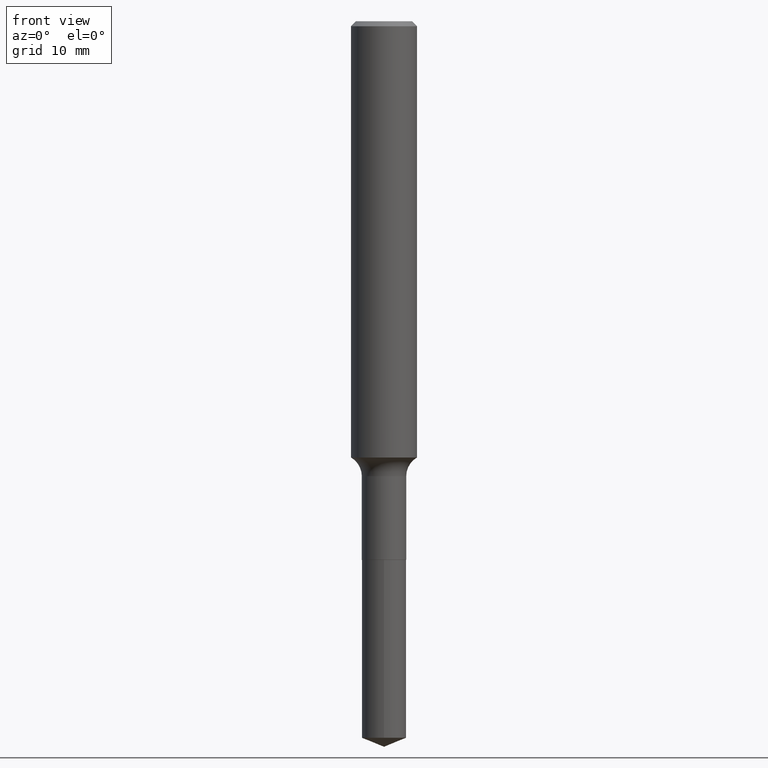
[diagram: clean part render]
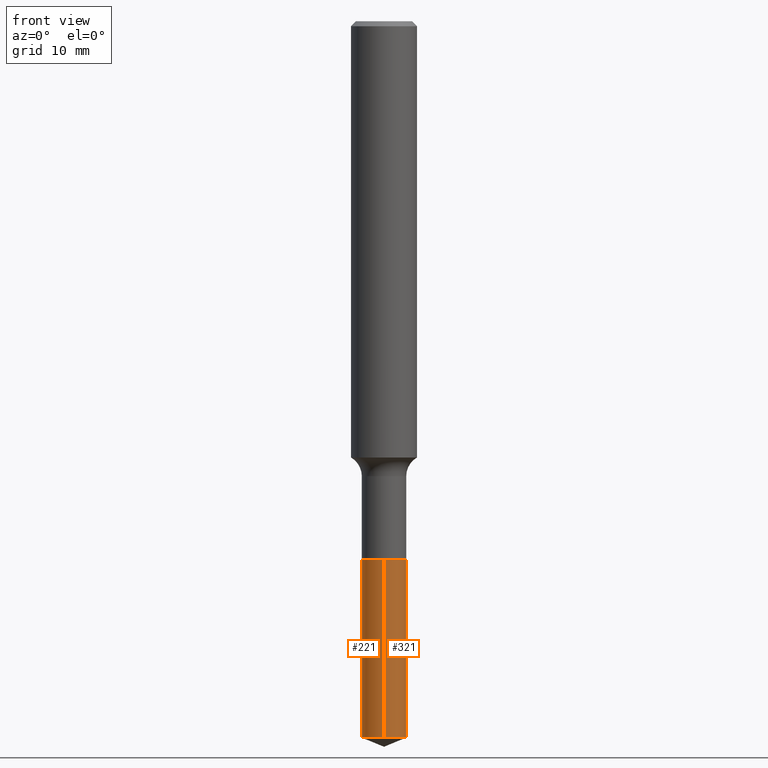
[diagram: same view with one multi-face feature highlighted, each face labeled with its STEP entity id]
A machine part, front view. The highlighted faces form ONE feature: a constant-radius fillet chain: 2 tangent blend faces with common blend radius 2.0193 mm. The faces share edges in the B-rep.
Their STEP definitions:
[1] entity #221 (Cylinder):
#4 = DIRECTION ( 'NONE',  ( -2.445416049279205825E-29, 3.491556889735175103E-15, 1.000000000000000000 ) ) ;
#7 = CARTESIAN_POINT ( 'NONE',  ( 5.648814749293424695E-16, 0.07949999999999327049, -1.929100000000000259 ) ) ;
#11 = CARTESIAN_POINT ( 'NONE',  ( 4.717553874011746679E-29, -6.735416650762311704E-15, -1.929099999999999815 ) ) ;
#15 = EDGE_CURVE ( 'NONE', #411, #398, #378, .T. ) ;
#32 = CARTESIAN_POINT ( 'NONE',  ( 4.717553874011746679E-29, -6.735416650762311704E-15, -1.929099999999999815 ) ) ;
#38 = LINE ( 'NONE', #350, #189 ) ;
#53 = ORIENTED_EDGE ( 'NONE', *, *, #15, .F. ) ;
#54 = EDGE_CURVE ( 'NONE', #207, #411, #332, .T. ) ;
#105 = CARTESIAN_POINT ( 'NONE',  ( -5.551455328760109192E-16, -0.07950000000000673195, -1.929099999999999593 ) ) ;
#119 = CYLINDRICAL_SURFACE ( 'NONE', #229, 0.07950000000000000122 ) ;
#157 = CARTESIAN_POINT ( 'NONE',  ( 5.648814749293423709E-16, 0.07949999999999105005, -2.566279915046105309 ) ) ;
#177 = EDGE_CURVE ( 'NONE', #207, #218, #255, .T. ) ;
#186 = ORIENTED_EDGE ( 'NONE', *, *, #177, .T. ) ;
#189 = VECTOR ( 'NONE', #343, 39.37007874015748143 ) ;
#196 = EDGE_CURVE ( 'NONE', #218, #398, #38, .T. ) ;
#197 = DIRECTION ( 'NONE',  ( -6.982962677686265922E-15, -1.000000000000000000, 6.872573568966700010E-15 ) ) ;
#204 = DIRECTION ( 'NONE',  ( -6.982962677686265922E-15, -1.000000000000000000, 3.436286784483350005E-15 ) ) ;
#207 = VERTEX_POINT ( 'NONE', #157 ) ;
#212 = AXIS2_PLACEMENT_3D ( 'NONE', #32, #233, #336 ) ;
#218 = VERTEX_POINT ( 'NONE', #307 ) ;
#221 = ADVANCED_FACE ( 'NONE', ( #429 ), #119, .T. ) ;
#229 = AXIS2_PLACEMENT_3D ( 'NONE', #11, #304, #204 ) ;
#233 = DIRECTION ( 'NONE',  ( -2.445416049279205825E-29, 3.491556889735175103E-15, 1.000000000000000000 ) ) ;
#234 = ORIENTED_EDGE ( 'NONE', *, *, #196, .T. ) ;
#252 = ORIENTED_EDGE ( 'NONE', *, *, #54, .F. ) ;
#255 = CIRCLE ( 'NONE', #351, 0.07950000000000000122 ) ;
#298 = EDGE_LOOP ( 'NONE', ( #252, #186, #234, #53 ) ) ;
#304 = DIRECTION ( 'NONE',  ( -2.445416049279205825E-29, 3.491556889735175103E-15, 1.000000000000000000 ) ) ;
#307 = CARTESIAN_POINT ( 'NONE',  ( -5.551455328759956350E-16, -0.07950000000000898015, -2.566279915046104421 ) ) ;
#332 = LINE ( 'NONE', #334, #407 ) ;
#334 = CARTESIAN_POINT ( 'NONE',  ( 5.648814749293266923E-16, 0.07949999999999327049, -1.929100000000000259 ) ) ;
#336 = DIRECTION ( 'NONE',  ( -6.982962677686265922E-15, -1.000000000000000000, 3.436286784483350005E-15 ) ) ;
#343 = DIRECTION ( 'NONE',  ( -2.445416049279205825E-29, 3.491556889735175498E-15, 1.000000000000000000 ) ) ;
#350 = CARTESIAN_POINT ( 'NONE',  ( -5.551455328760109192E-16, -0.07950000000000673195, -1.929099999999999593 ) ) ;
#351 = AXIS2_PLACEMENT_3D ( 'NONE', #354, #4, #197 ) ;
#354 = CARTESIAN_POINT ( 'NONE',  ( 6.275723864543851809E-29, -8.960166573142413647E-15, -2.566279915046104421 ) ) ;
#378 = CIRCLE ( 'NONE', #212, 0.07950000000000000122 ) ;
#398 = VERTEX_POINT ( 'NONE', #105 ) ;
#407 = VECTOR ( 'NONE', #484, 39.37007874015748143 ) ;
#411 = VERTEX_POINT ( 'NONE', #7 ) ;
#429 = FACE_OUTER_BOUND ( 'NONE', #298, .T. ) ;
#484 = DIRECTION ( 'NONE',  ( -2.445416049279205825E-29, 3.491556889735175498E-15, 1.000000000000000000 ) ) ;
[2] entity #321 (Cylinder):
#7 = CARTESIAN_POINT ( 'NONE',  ( 5.648814749293424695E-16, 0.07949999999999327049, -1.929100000000000259 ) ) ;
#31 = AXIS2_PLACEMENT_3D ( 'NONE', #35, #47, #387 ) ;
#35 = CARTESIAN_POINT ( 'NONE',  ( 6.275723864543851809E-29, -8.960166573142413647E-15, -2.566279915046104421 ) ) ;
#38 = LINE ( 'NONE', #350, #189 ) ;
#47 = DIRECTION ( 'NONE',  ( -2.445416049279205825E-29, 3.491556889735175103E-15, 1.000000000000000000 ) ) ;
#52 = DIRECTION ( 'NONE',  ( -6.982962677686265922E-15, -1.000000000000000000, 3.436286784483350005E-15 ) ) ;
#54 = EDGE_CURVE ( 'NONE', #207, #411, #332, .T. ) ;
#56 = FACE_OUTER_BOUND ( 'NONE', #102, .T. ) ;
#95 = CARTESIAN_POINT ( 'NONE',  ( 4.717553874011746679E-29, -6.735416650762311704E-15, -1.929099999999999815 ) ) ;
#97 = DIRECTION ( 'NONE',  ( -2.445416049279205825E-29, 3.491556889735175103E-15, 1.000000000000000000 ) ) ;
#102 = EDGE_LOOP ( 'NONE', ( #405, #227, #436, #258 ) ) ;
#105 = CARTESIAN_POINT ( 'NONE',  ( -5.551455328760109192E-16, -0.07950000000000673195, -1.929099999999999593 ) ) ;
#154 = AXIS2_PLACEMENT_3D ( 'NONE', #473, #97, #470 ) ;
#157 = CARTESIAN_POINT ( 'NONE',  ( 5.648814749293423709E-16, 0.07949999999999105005, -2.566279915046105309 ) ) ;
#175 = CIRCLE ( 'NONE', #352, 0.07950000000000000122 ) ;
#189 = VECTOR ( 'NONE', #343, 39.37007874015748143 ) ;
#196 = EDGE_CURVE ( 'NONE', #218, #398, #38, .T. ) ;
#198 = EDGE_CURVE ( 'NONE', #218, #207, #239, .T. ) ;
#207 = VERTEX_POINT ( 'NONE', #157 ) ;
#218 = VERTEX_POINT ( 'NONE', #307 ) ;
#227 = ORIENTED_EDGE ( 'NONE', *, *, #54, .T. ) ;
#239 = CIRCLE ( 'NONE', #31, 0.07950000000000000122 ) ;
#251 = DIRECTION ( 'NONE',  ( -2.445416049279205825E-29, 3.491556889735175103E-15, 1.000000000000000000 ) ) ;
#258 = ORIENTED_EDGE ( 'NONE', *, *, #196, .F. ) ;
#307 = CARTESIAN_POINT ( 'NONE',  ( -5.551455328759956350E-16, -0.07950000000000898015, -2.566279915046104421 ) ) ;
#321 = ADVANCED_FACE ( 'NONE', ( #56 ), #358, .T. ) ;
#332 = LINE ( 'NONE', #334, #407 ) ;
#334 = CARTESIAN_POINT ( 'NONE',  ( 5.648814749293266923E-16, 0.07949999999999327049, -1.929100000000000259 ) ) ;
#343 = DIRECTION ( 'NONE',  ( -2.445416049279205825E-29, 3.491556889735175498E-15, 1.000000000000000000 ) ) ;
#350 = CARTESIAN_POINT ( 'NONE',  ( -5.551455328760109192E-16, -0.07950000000000673195, -1.929099999999999593 ) ) ;
#352 = AXIS2_PLACEMENT_3D ( 'NONE', #95, #251, #52 ) ;
#358 = CYLINDRICAL_SURFACE ( 'NONE', #154, 0.07950000000000000122 ) ;
#370 = EDGE_CURVE ( 'NONE', #398, #411, #175, .T. ) ;
#387 = DIRECTION ( 'NONE',  ( -6.982962677686265922E-15, -1.000000000000000000, 6.872573568966700010E-15 ) ) ;
#398 = VERTEX_POINT ( 'NONE', #105 ) ;
#405 = ORIENTED_EDGE ( 'NONE', *, *, #198, .T. ) ;
#407 = VECTOR ( 'NONE', #484, 39.37007874015748143 ) ;
#411 = VERTEX_POINT ( 'NONE', #7 ) ;
#436 = ORIENTED_EDGE ( 'NONE', *, *, #370, .F. ) ;
#470 = DIRECTION ( 'NONE',  ( -6.982962677686265922E-15, -1.000000000000000000, 3.436286784483350005E-15 ) ) ;
#473 = CARTESIAN_POINT ( 'NONE',  ( 4.717553874011746679E-29, -6.735416650762311704E-15, -1.929099999999999815 ) ) ;
#484 = DIRECTION ( 'NONE',  ( -2.445416049279205825E-29, 3.491556889735175498E-15, 1.000000000000000000 ) ) ;